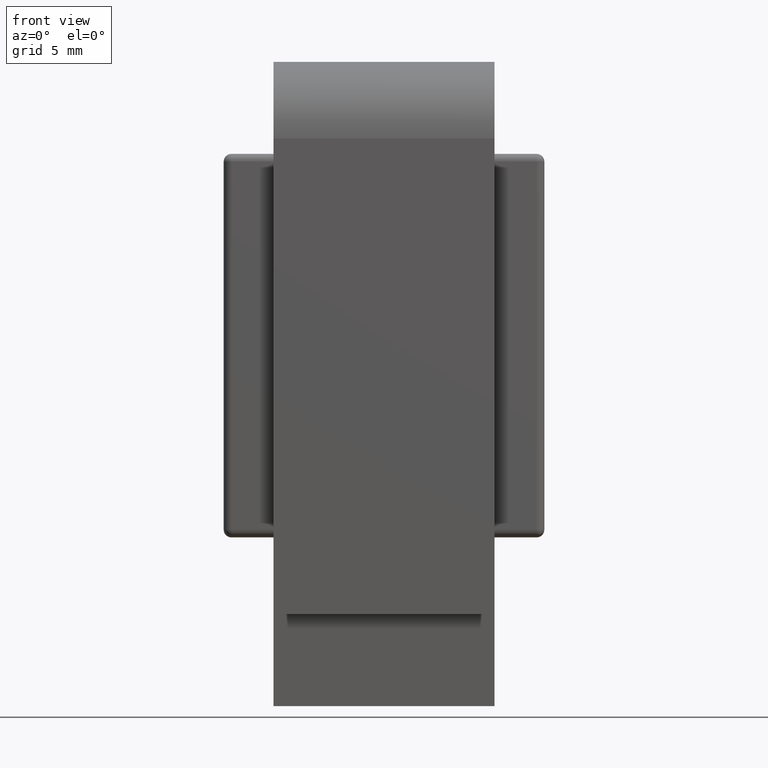
[diagram: clean part render]
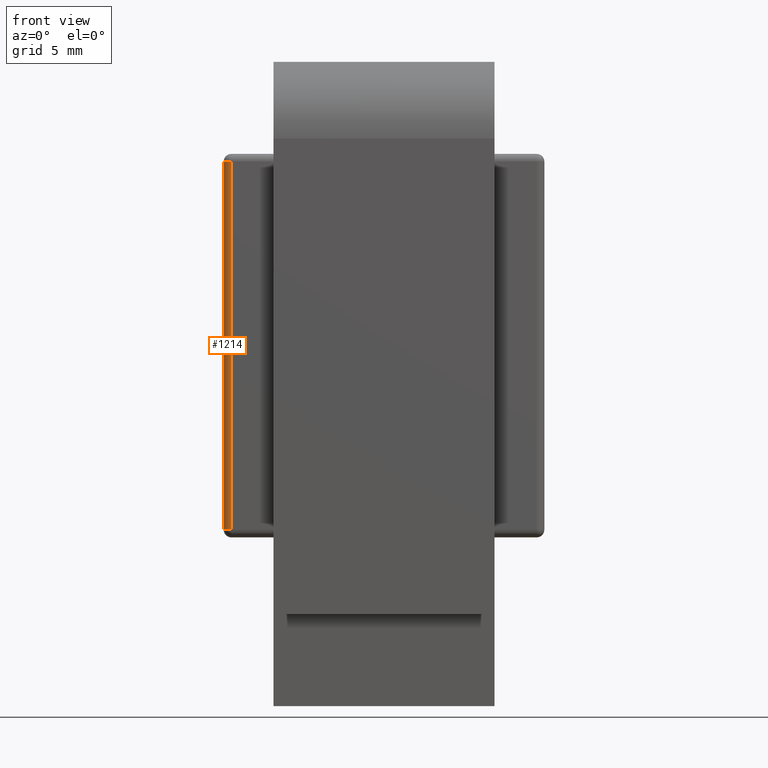
[diagram: same view with one face highlighted and labeled with its STEP entity id]
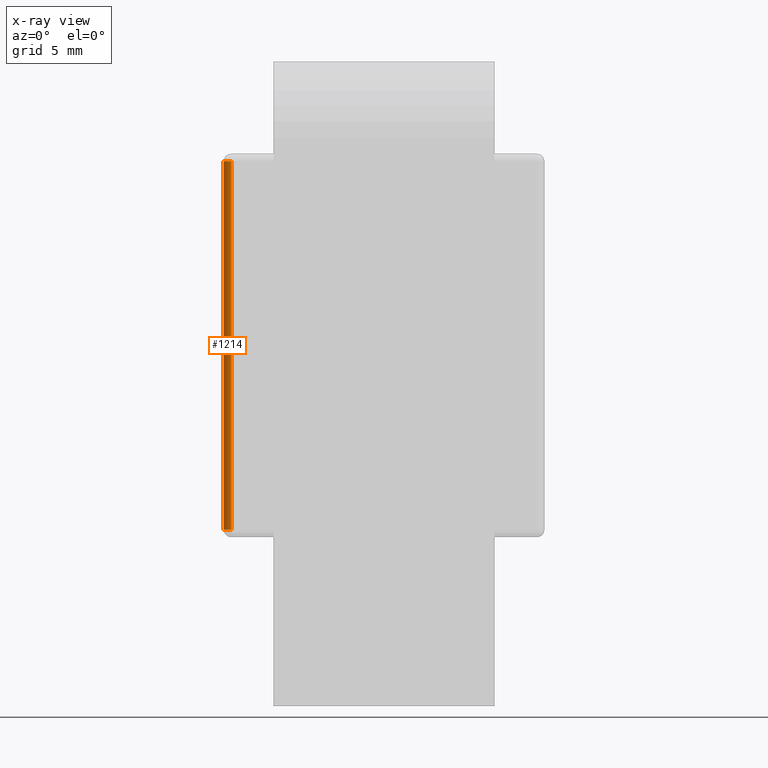
[diagram: x-ray of the same camera — body ghosted, the highlighted face saturated]
A machine part, front view. The second image highlights one B-rep face of the part: STEP entity #1214.
The next image is the same camera in x-ray: the body ghosted, the highlighted face saturated — about 0% of this face is hidden behind the body in this view.
In plain terms, the highlighted cylindrical surface (edge-blend (fillet) strip) has radius 0.5 mm, axis along (0, 0, -1).
Its self-contained STEP definition (entity closure, byte-faithful):
#559 = CIRCLE ( 'NONE', #5546, 0.5000000000000000000 ) ;
#736 = CARTESIAN_POINT ( 'NONE',  ( -2.750000000000000900, -2.300000000000002900, 4.999999999999997300 ) ) ;
#883 = CYLINDRICAL_SURFACE ( 'NONE', #2177, 0.5000000000000000000 ) ;
#934 = VECTOR ( 'NONE', #9935, 1000.000000000000000 ) ;
#1214 = ADVANCED_FACE ( 'NONE', ( #7808 ), #883, .T. ) ;
#1549 = DIRECTION ( 'NONE',  ( 0.0000000000000000000, -0.0000000000000000000, -1.000000000000000000 ) ) ;
#1564 = DIRECTION ( 'NONE',  ( 1.000000000000000000, 0.0000000000000000000, 0.0000000000000000000 ) ) ;
#2177 = AXIS2_PLACEMENT_3D ( 'NONE', #6928, #1549, #2278 ) ;
#2264 = ORIENTED_EDGE ( 'NONE', *, *, #9106, .F. ) ;
#2278 = DIRECTION ( 'NONE',  ( -1.000000000000000000, 0.0000000000000000000, 0.0000000000000000000 ) ) ;
#2482 = CARTESIAN_POINT ( 'NONE',  ( -2.750000000000000900, -2.300000000000002900, 29.50000000000000000 ) ) ;
#2829 = VERTEX_POINT ( 'NONE', #2482 ) ;
#2859 = EDGE_LOOP ( 'NONE', ( #5295, #2264, #9286, #8760 ) ) ;
#3347 = CARTESIAN_POINT ( 'NONE',  ( -2.750000000000000900, -2.300000000000002900, 5.499999999999998200 ) ) ;
#4067 = DIRECTION ( 'NONE',  ( -1.000000000000000000, 0.0000000000000000000, 0.0000000000000000000 ) ) ;
#4218 = VERTEX_POINT ( 'NONE', #5952 ) ;
#4633 = CARTESIAN_POINT ( 'NONE',  ( -2.750000000000000900, -1.800000000000002900, 29.50000000000000000 ) ) ;
#4934 = EDGE_CURVE ( 'NONE', #2829, #7469, #8589, .T. ) ;
#5295 = ORIENTED_EDGE ( 'NONE', *, *, #8578, .T. ) ;
#5436 = CARTESIAN_POINT ( 'NONE',  ( -3.249999999999999600, -1.800000000000002900, 5.499999999999998200 ) ) ;
#5546 = AXIS2_PLACEMENT_3D ( 'NONE', #7223, #6432, #4067 ) ;
#5952 = CARTESIAN_POINT ( 'NONE',  ( -3.249999999999999600, -1.800000000000002900, 29.50000000000000000 ) ) ;
#5984 = VERTEX_POINT ( 'NONE', #5436 ) ;
#6192 = DIRECTION ( 'NONE',  ( -0.0000000000000000000, -0.0000000000000000000, -1.000000000000000000 ) ) ;
#6286 = LINE ( 'NONE', #6669, #7471 ) ;
#6432 = DIRECTION ( 'NONE',  ( -0.0000000000000000000, -0.0000000000000000000, -1.000000000000000000 ) ) ;
#6600 = DIRECTION ( 'NONE',  ( 0.0000000000000000000, 0.0000000000000000000, 1.000000000000000000 ) ) ;
#6669 = CARTESIAN_POINT ( 'NONE',  ( -3.249999999999999600, -1.800000000000002900, 30.00000000000000000 ) ) ;
#6928 = CARTESIAN_POINT ( 'NONE',  ( -2.750000000000000900, -1.800000000000002900, 0.0000000000000000000 ) ) ;
#7223 = CARTESIAN_POINT ( 'NONE',  ( -2.750000000000000900, -1.800000000000002900, 5.499999999999998200 ) ) ;
#7338 = EDGE_CURVE ( 'NONE', #7469, #5984, #559, .T. ) ;
#7469 = VERTEX_POINT ( 'NONE', #3347 ) ;
#7471 = VECTOR ( 'NONE', #6600, 1000.000000000000000 ) ;
#7808 = FACE_OUTER_BOUND ( 'NONE', #2859, .T. ) ;
#8578 = EDGE_CURVE ( 'NONE', #2829, #4218, #9213, .T. ) ;
#8589 = LINE ( 'NONE', #736, #934 ) ;
#8760 = ORIENTED_EDGE ( 'NONE', *, *, #4934, .F. ) ;
#9106 = EDGE_CURVE ( 'NONE', #5984, #4218, #6286, .T. ) ;
#9213 = CIRCLE ( 'NONE', #9907, 0.5000000000000000000 ) ;
#9286 = ORIENTED_EDGE ( 'NONE', *, *, #7338, .F. ) ;
#9907 = AXIS2_PLACEMENT_3D ( 'NONE', #4633, #6192, #1564 ) ;
#9935 = DIRECTION ( 'NONE',  ( 0.0000000000000000000, -0.0000000000000000000, -1.000000000000000000 ) ) ;